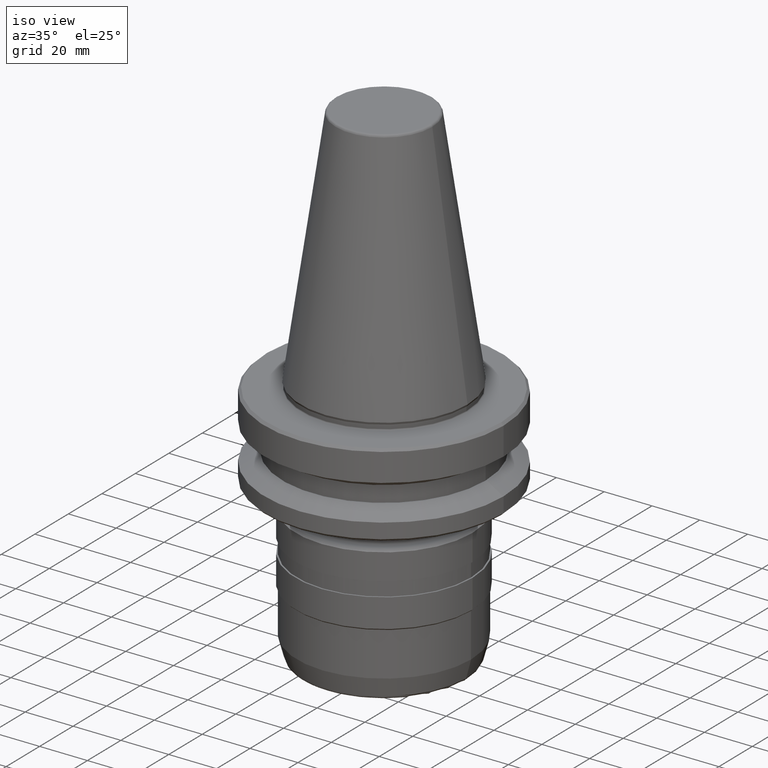
[diagram: clean part render]
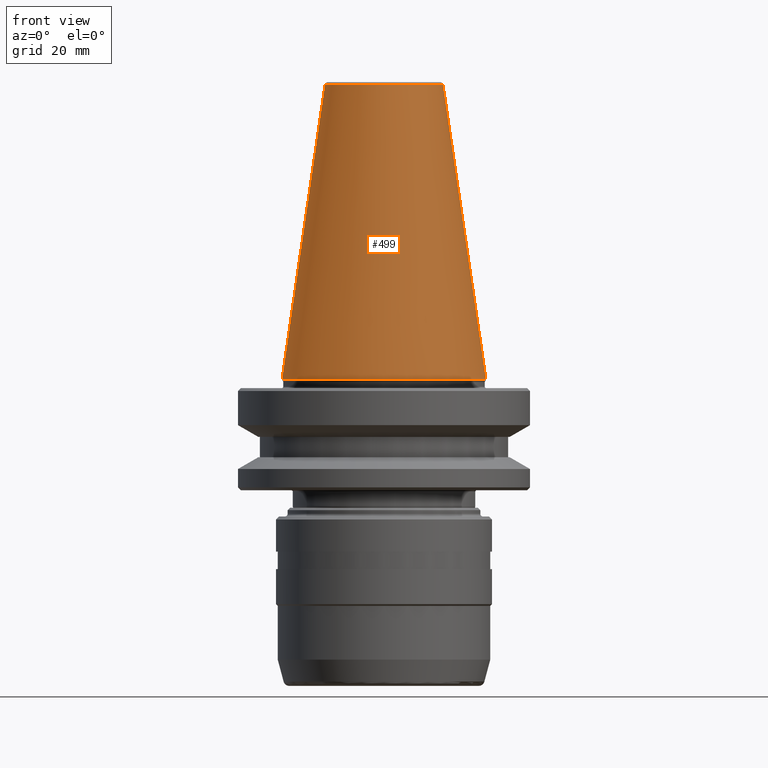
[diagram: tour spotlight — one face highlighted and labeled with its STEP entity id]
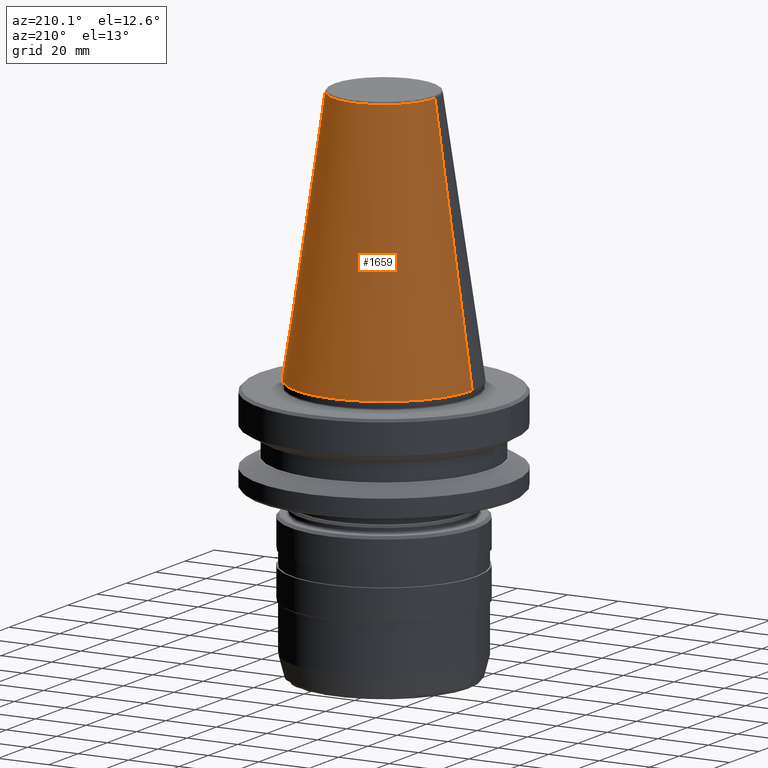
[diagram: tour spotlight — one face highlighted and labeled with its STEP entity id]
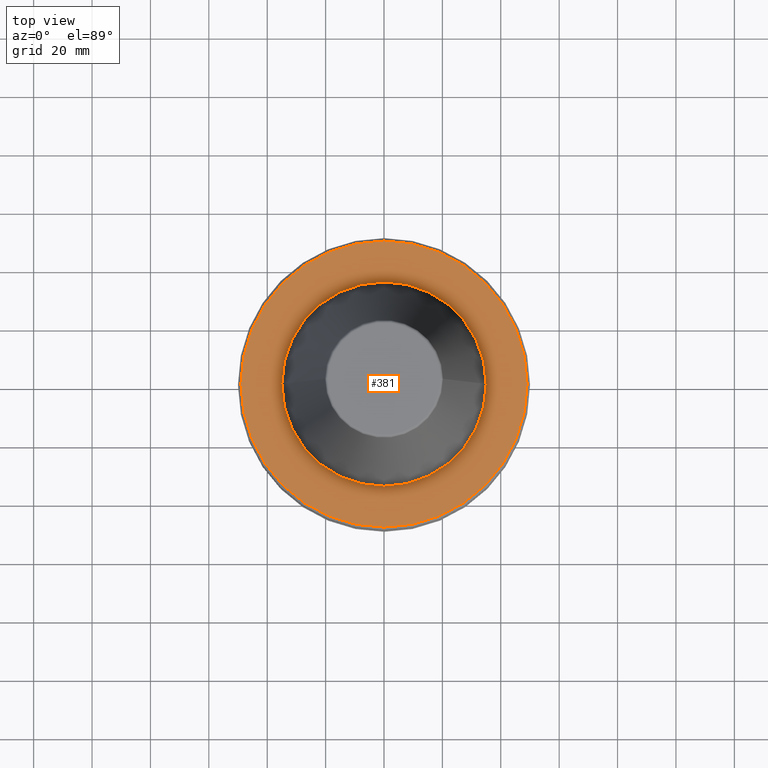
[diagram: tour spotlight — one face highlighted and labeled with its STEP entity id]
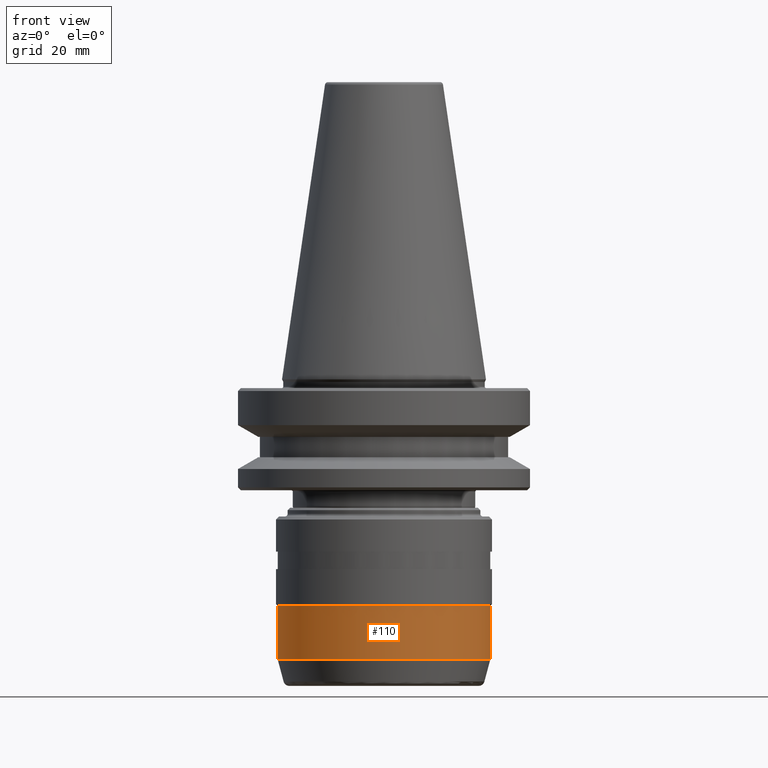
[diagram: tour spotlight — one face highlighted and labeled with its STEP entity id]
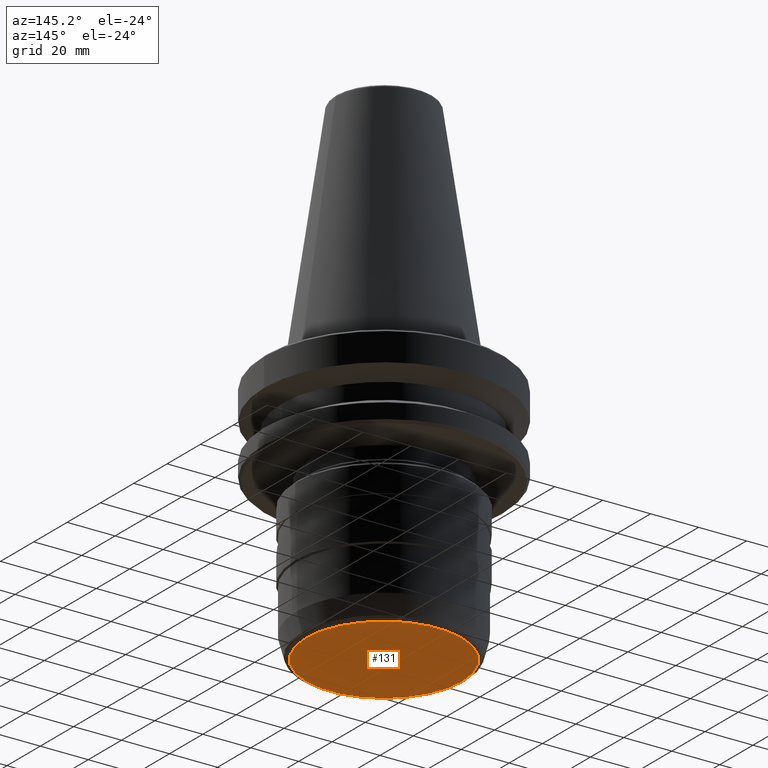
[diagram: tour spotlight — one face highlighted and labeled with its STEP entity id]
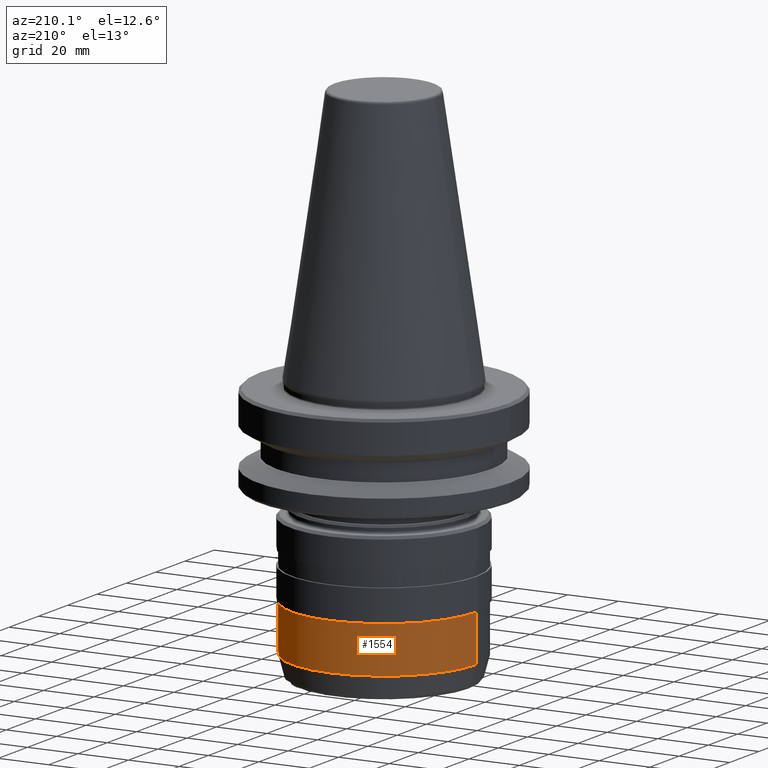
[diagram: tour spotlight — one face highlighted and labeled with its STEP entity id]
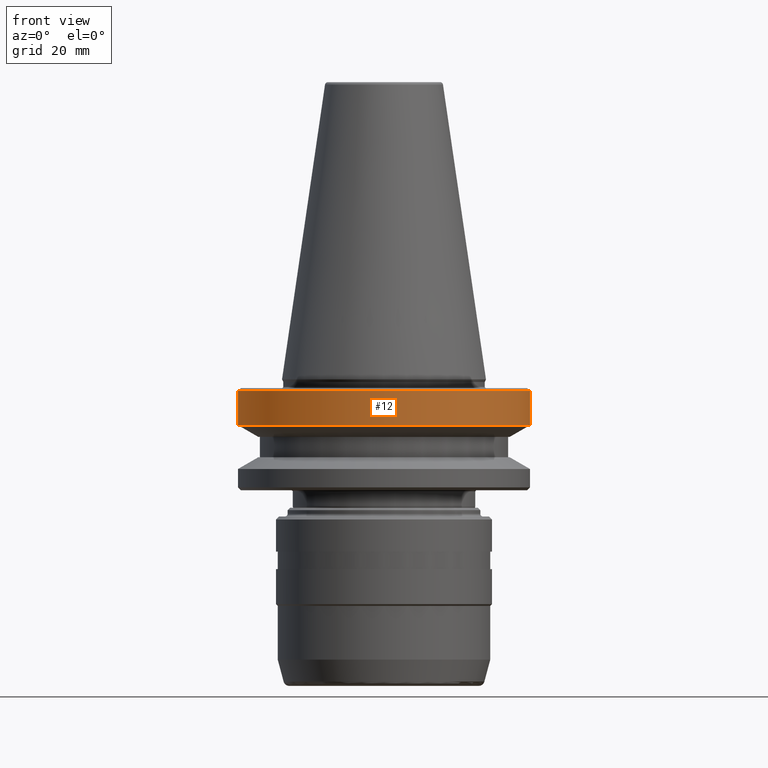
[diagram: tour spotlight — one face highlighted and labeled with its STEP entity id]
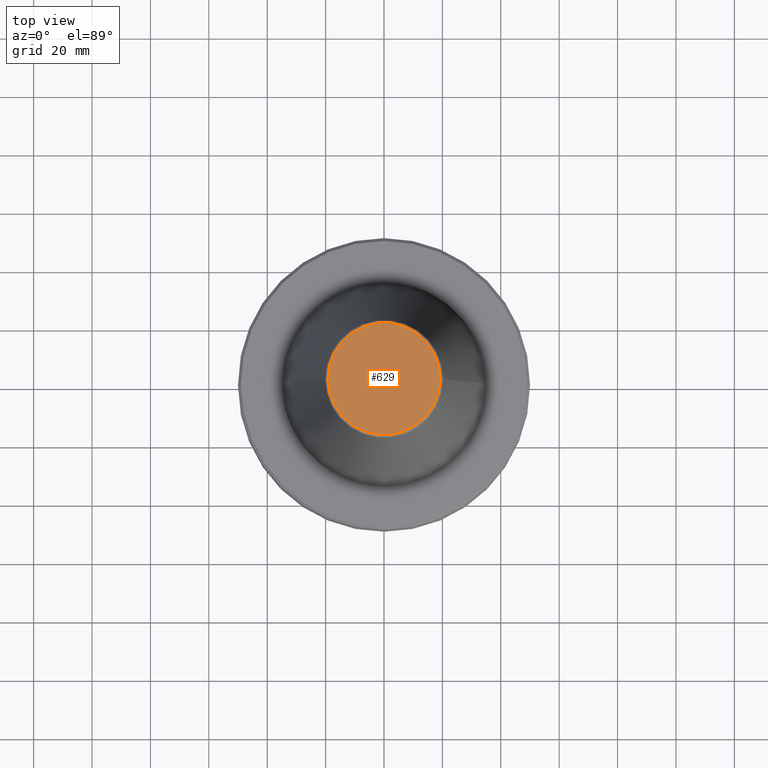
[diagram: tour spotlight — one face highlighted and labeled with its STEP entity id]
A machine part: a face-by-face anatomy tour. The part has 62 B-rep faces; the first image is the clean iso view, then the 8 largest visible faces are spotlighted one at a time (largest first), each with its STEP entity span.

Face 1 — front view, entity #499. In plain terms, the highlighted conical surface has half-angle 8.297 deg.
Definition (entity closure, byte-faithful):
#91 = EDGE_CURVE ( 'NONE', #735, #420, #225, .T. ) ;
#102 = DIRECTION ( 'NONE',  ( 1.000000000000000000, 0.0000000000000000000, 0.0000000000000000000 ) ) ;
#138 = AXIS2_PLACEMENT_3D ( 'NONE', #1154, #1097, #923 ) ;
#156 = EDGE_CURVE ( 'NONE', #364, #420, #1190, .T. ) ;
#222 = DIRECTION ( 'NONE',  ( -0.1443082234293903100, 0.0000000000000000000, -0.9895327870518759700 ) ) ;
#225 = CIRCLE ( 'NONE', #138, 34.92499999999986900 ) ;
#253 = CARTESIAN_POINT ( 'NONE',  ( -20.20381645192199100, 0.0000000000000000000, 100.9443082234282800 ) ) ;
#364 = VERTEX_POINT ( 'NONE', #639 ) ;
#379 = ORIENTED_EDGE ( 'NONE', *, *, #91, .T. ) ;
#416 = DIRECTION ( 'NONE',  ( -1.000000000000000000, 0.0000000000000000000, 0.0000000000000000000 ) ) ;
#419 = CONICAL_SURFACE ( 'NONE', #636, 34.92499999999986900, 0.1448138426689051000 ) ;
#420 = VERTEX_POINT ( 'NONE', #746 ) ;
#450 = DIRECTION ( 'NONE',  ( 0.0000000000000000000, 0.0000000000000000000, -1.000000000000000000 ) ) ;
#484 = AXIS2_PLACEMENT_3D ( 'NONE', #1654, #890, #102 ) ;
#499 = ADVANCED_FACE ( 'NONE', ( #1083 ), #419, .T. ) ;
#542 = VECTOR ( 'NONE', #222, 999.9999999999998900 ) ;
#636 = AXIS2_PLACEMENT_3D ( 'NONE', #701, #450, #416 ) ;
#639 = CARTESIAN_POINT ( 'NONE',  ( 20.20381645192199100, 3.375666430431402900E-015, 100.9443082234282800 ) ) ;
#651 = CARTESIAN_POINT ( 'NONE',  ( 34.92499999999986900, 4.277078946022115100E-015, 0.0000000000000000000 ) ) ;
#660 = ORIENTED_EDGE ( 'NONE', *, *, #1479, .T. ) ;
#691 = EDGE_LOOP ( 'NONE', ( #1460, #1430, #660, #379 ) ) ;
#701 = CARTESIAN_POINT ( 'NONE',  ( 0.0000000000000000000, 0.0000000000000000000, 0.0000000000000000000 ) ) ;
#735 = VERTEX_POINT ( 'NONE', #1503 ) ;
#746 = CARTESIAN_POINT ( 'NONE',  ( 34.92499999999986900, 0.0000000000000000000, 0.0000000000000000000 ) ) ;
#890 = DIRECTION ( 'NONE',  ( -0.0000000000000000000, -0.0000000000000000000, 1.000000000000000000 ) ) ;
#909 = EDGE_CURVE ( 'NONE', #947, #364, #1635, .T. ) ;
#923 = DIRECTION ( 'NONE',  ( 1.000000000000000000, 0.0000000000000000000, 0.0000000000000000000 ) ) ;
#947 = VERTEX_POINT ( 'NONE', #253 ) ;
#1049 = VECTOR ( 'NONE', #1523, 999.9999999999998900 ) ;
#1083 = FACE_OUTER_BOUND ( 'NONE', #691, .T. ) ;
#1097 = DIRECTION ( 'NONE',  ( -0.0000000000000000000, -0.0000000000000000000, 1.000000000000000000 ) ) ;
#1139 = CARTESIAN_POINT ( 'NONE',  ( -34.92499999999986900, 0.0000000000000000000, 0.0000000000000000000 ) ) ;
#1154 = CARTESIAN_POINT ( 'NONE',  ( 0.0000000000000000000, 0.0000000000000000000, 0.0000000000000000000 ) ) ;
#1190 = LINE ( 'NONE', #651, #1049 ) ;
#1199 = LINE ( 'NONE', #1139, #542 ) ;
#1430 = ORIENTED_EDGE ( 'NONE', *, *, #909, .F. ) ;
#1460 = ORIENTED_EDGE ( 'NONE', *, *, #156, .F. ) ;
#1479 = EDGE_CURVE ( 'NONE', #947, #735, #1199, .T. ) ;
#1503 = CARTESIAN_POINT ( 'NONE',  ( -34.92499999999986900, 4.277078946022115900E-015, 0.0000000000000000000 ) ) ;
#1523 = DIRECTION ( 'NONE',  ( 0.1443082234293903100, 1.767266039134439300E-017, -0.9895327870518759700 ) ) ;
#1635 = CIRCLE ( 'NONE', #484, 20.20381645192199100 ) ;
#1654 = CARTESIAN_POINT ( 'NONE',  ( 0.0000000000000000000, 0.0000000000000000000, 100.9443082234282800 ) ) ;

Face 2 — auxiliary view, entity #1659. In plain terms, the highlighted conical surface has half-angle 8.297 deg.
Definition (entity closure, byte-faithful):
#6 = DIRECTION ( 'NONE',  ( 0.0000000000000000000, 0.0000000000000000000, -1.000000000000000000 ) ) ;
#24 = CIRCLE ( 'NONE', #84, 20.20381645192199100 ) ;
#84 = AXIS2_PLACEMENT_3D ( 'NONE', #146, #1072, #292 ) ;
#146 = CARTESIAN_POINT ( 'NONE',  ( 0.0000000000000000000, 0.0000000000000000000, 100.9443082234282800 ) ) ;
#156 = EDGE_CURVE ( 'NONE', #364, #420, #1190, .T. ) ;
#222 = DIRECTION ( 'NONE',  ( -0.1443082234293903100, 0.0000000000000000000, -0.9895327870518759700 ) ) ;
#243 = EDGE_CURVE ( 'NONE', #420, #735, #1286, .T. ) ;
#253 = CARTESIAN_POINT ( 'NONE',  ( -20.20381645192199100, 0.0000000000000000000, 100.9443082234282800 ) ) ;
#264 = CONICAL_SURFACE ( 'NONE', #1128, 34.92499999999986900, 0.1448138426689051000 ) ;
#292 = DIRECTION ( 'NONE',  ( 1.000000000000000000, 0.0000000000000000000, 0.0000000000000000000 ) ) ;
#307 = FACE_OUTER_BOUND ( 'NONE', #661, .T. ) ;
#308 = AXIS2_PLACEMENT_3D ( 'NONE', #1105, #1338, #1458 ) ;
#315 = ORIENTED_EDGE ( 'NONE', *, *, #243, .T. ) ;
#360 = ORIENTED_EDGE ( 'NONE', *, *, #1096, .F. ) ;
#364 = VERTEX_POINT ( 'NONE', #639 ) ;
#420 = VERTEX_POINT ( 'NONE', #746 ) ;
#479 = ORIENTED_EDGE ( 'NONE', *, *, #156, .T. ) ;
#515 = DIRECTION ( 'NONE',  ( -1.000000000000000000, 0.0000000000000000000, 0.0000000000000000000 ) ) ;
#542 = VECTOR ( 'NONE', #222, 999.9999999999998900 ) ;
#639 = CARTESIAN_POINT ( 'NONE',  ( 20.20381645192199100, 3.375666430431402900E-015, 100.9443082234282800 ) ) ;
#651 = CARTESIAN_POINT ( 'NONE',  ( 34.92499999999986900, 4.277078946022115100E-015, 0.0000000000000000000 ) ) ;
#661 = EDGE_LOOP ( 'NONE', ( #360, #479, #315, #1142 ) ) ;
#735 = VERTEX_POINT ( 'NONE', #1503 ) ;
#746 = CARTESIAN_POINT ( 'NONE',  ( 34.92499999999986900, 0.0000000000000000000, 0.0000000000000000000 ) ) ;
#947 = VERTEX_POINT ( 'NONE', #253 ) ;
#1049 = VECTOR ( 'NONE', #1523, 999.9999999999998900 ) ;
#1072 = DIRECTION ( 'NONE',  ( -0.0000000000000000000, -0.0000000000000000000, 1.000000000000000000 ) ) ;
#1096 = EDGE_CURVE ( 'NONE', #364, #947, #24, .T. ) ;
#1105 = CARTESIAN_POINT ( 'NONE',  ( 0.0000000000000000000, 0.0000000000000000000, 0.0000000000000000000 ) ) ;
#1128 = AXIS2_PLACEMENT_3D ( 'NONE', #1301, #6, #515 ) ;
#1139 = CARTESIAN_POINT ( 'NONE',  ( -34.92499999999986900, 0.0000000000000000000, 0.0000000000000000000 ) ) ;
#1142 = ORIENTED_EDGE ( 'NONE', *, *, #1479, .F. ) ;
#1190 = LINE ( 'NONE', #651, #1049 ) ;
#1199 = LINE ( 'NONE', #1139, #542 ) ;
#1286 = CIRCLE ( 'NONE', #308, 34.92499999999986900 ) ;
#1301 = CARTESIAN_POINT ( 'NONE',  ( 0.0000000000000000000, 0.0000000000000000000, 0.0000000000000000000 ) ) ;
#1338 = DIRECTION ( 'NONE',  ( -0.0000000000000000000, -0.0000000000000000000, 1.000000000000000000 ) ) ;
#1458 = DIRECTION ( 'NONE',  ( 1.000000000000000000, 0.0000000000000000000, 0.0000000000000000000 ) ) ;
#1479 = EDGE_CURVE ( 'NONE', #947, #735, #1199, .T. ) ;
#1503 = CARTESIAN_POINT ( 'NONE',  ( -34.92499999999986900, 4.277078946022115900E-015, 0.0000000000000000000 ) ) ;
#1523 = DIRECTION ( 'NONE',  ( 0.1443082234293903100, 1.767266039134439300E-017, -0.9895327870518759700 ) ) ;
#1659 = ADVANCED_FACE ( 'NONE', ( #307 ), #264, .T. ) ;

Face 3 — top view, entity #381. In plain terms, the highlighted planar face has unit normal (0, 0, -1).
Definition (entity closure, byte-faithful):
#76 = DIRECTION ( 'NONE',  ( -0.0000000000000000000, -0.0000000000000000000, 1.000000000000000000 ) ) ;
#155 = CARTESIAN_POINT ( 'NONE',  ( 0.0000000000000000000, 0.0000000000000000000, -3.000000000001612500 ) ) ;
#181 = EDGE_CURVE ( 'NONE', #925, #1349, #903, .T. ) ;
#208 = EDGE_CURVE ( 'NONE', #1349, #925, #392, .T. ) ;
#242 = CARTESIAN_POINT ( 'NONE',  ( 0.0000000000000000000, 49.00000000000037700, -3.000000000001529400 ) ) ;
#297 = VERTEX_POINT ( 'NONE', #1202 ) ;
#327 = CIRCLE ( 'NONE', #1451, 49.00000000000037700 ) ;
#381 = ADVANCED_FACE ( 'NONE', ( #692, #1246 ), #784, .F. ) ;
#389 = DIRECTION ( 'NONE',  ( 1.000000000000000000, 0.0000000000000000000, 0.0000000000000000000 ) ) ;
#392 = CIRCLE ( 'NONE', #1276, 35.00000000000014200 ) ;
#516 = EDGE_LOOP ( 'NONE', ( #881, #1463 ) ) ;
#583 = DIRECTION ( 'NONE',  ( 1.000000000000000000, 0.0000000000000000000, 0.0000000000000000000 ) ) ;
#646 = EDGE_CURVE ( 'NONE', #297, #795, #832, .T. ) ;
#692 = FACE_BOUND ( 'NONE', #1406, .T. ) ;
#729 = DIRECTION ( 'NONE',  ( -1.000000000000000000, 0.0000000000000000000, -0.0000000000000000000 ) ) ;
#768 = CARTESIAN_POINT ( 'NONE',  ( -35.00000000000014200, 4.286263797015753900E-015, -3.000000000001612500 ) ) ;
#776 = DIRECTION ( 'NONE',  ( 0.0000000000000000000, 0.0000000000000000000, -1.000000000000000000 ) ) ;
#784 = PLANE ( 'NONE',  #1539 ) ;
#790 = DIRECTION ( 'NONE',  ( -0.0000000000000000000, -0.0000000000000000000, 1.000000000000000000 ) ) ;
#795 = VERTEX_POINT ( 'NONE', #1238 ) ;
#817 = CARTESIAN_POINT ( 'NONE',  ( 0.0000000000000000000, 0.0000000000000000000, -3.000000000001612500 ) ) ;
#832 = CIRCLE ( 'NONE', #1397, 49.00000000000037700 ) ;
#867 = CARTESIAN_POINT ( 'NONE',  ( 0.0000000000000000000, 0.0000000000000000000, -3.000000000001446000 ) ) ;
#881 = ORIENTED_EDGE ( 'NONE', *, *, #1395, .T. ) ;
#903 = CIRCLE ( 'NONE', #1112, 35.00000000000014200 ) ;
#925 = VERTEX_POINT ( 'NONE', #768 ) ;
#988 = DIRECTION ( 'NONE',  ( 1.000000000000000000, 0.0000000000000000000, 0.0000000000000000000 ) ) ;
#997 = DIRECTION ( 'NONE',  ( 1.000000000000000000, 0.0000000000000000000, 0.0000000000000000000 ) ) ;
#1112 = AXIS2_PLACEMENT_3D ( 'NONE', #817, #1263, #389 ) ;
#1113 = DIRECTION ( 'NONE',  ( -0.0000000000000000000, -0.0000000000000000000, 1.000000000000000000 ) ) ;
#1150 = ORIENTED_EDGE ( 'NONE', *, *, #181, .F. ) ;
#1202 = CARTESIAN_POINT ( 'NONE',  ( 49.00000000000037700, 6.062001655779445100E-015, -3.000000000001446000 ) ) ;
#1235 = CARTESIAN_POINT ( 'NONE',  ( 35.00000000000014200, 0.0000000000000000000, -3.000000000001612500 ) ) ;
#1238 = CARTESIAN_POINT ( 'NONE',  ( -49.00000000000037700, 0.0000000000000000000, -3.000000000001446000 ) ) ;
#1246 = FACE_OUTER_BOUND ( 'NONE', #516, .T. ) ;
#1263 = DIRECTION ( 'NONE',  ( -0.0000000000000000000, -0.0000000000000000000, 1.000000000000000000 ) ) ;
#1276 = AXIS2_PLACEMENT_3D ( 'NONE', #155, #790, #583 ) ;
#1297 = CARTESIAN_POINT ( 'NONE',  ( 0.0000000000000000000, 0.0000000000000000000, -3.000000000001446000 ) ) ;
#1349 = VERTEX_POINT ( 'NONE', #1235 ) ;
#1395 = EDGE_CURVE ( 'NONE', #795, #297, #327, .T. ) ;
#1397 = AXIS2_PLACEMENT_3D ( 'NONE', #1297, #1113, #988 ) ;
#1406 = EDGE_LOOP ( 'NONE', ( #1410, #1150 ) ) ;
#1410 = ORIENTED_EDGE ( 'NONE', *, *, #208, .F. ) ;
#1451 = AXIS2_PLACEMENT_3D ( 'NONE', #867, #76, #997 ) ;
#1463 = ORIENTED_EDGE ( 'NONE', *, *, #646, .T. ) ;
#1539 = AXIS2_PLACEMENT_3D ( 'NONE', #242, #776, #729 ) ;

Face 4 — front view, entity #110. In plain terms, the highlighted cylindrical surface (partial cylindrical patch) has radius 36.4 mm, axis along (-0, -0, 1).
Definition (entity closure, byte-faithful):
#5 = VERTEX_POINT ( 'NONE', #871 ) ;
#23 = DIRECTION ( 'NONE',  ( -0.0000000000000000000, -0.0000000000000000000, 1.000000000000000000 ) ) ;
#65 = AXIS2_PLACEMENT_3D ( 'NONE', #1076, #299, #1203 ) ;
#77 = ORIENTED_EDGE ( 'NONE', *, *, #1156, .F. ) ;
#110 = ADVANCED_FACE ( 'NONE', ( #316 ), #1585, .T. ) ;
#185 = VERTEX_POINT ( 'NONE', #1358 ) ;
#262 = DIRECTION ( 'NONE',  ( -0.0000000000000000000, -0.0000000000000000000, 1.000000000000000000 ) ) ;
#299 = DIRECTION ( 'NONE',  ( -0.0000000000000000000, -0.0000000000000000000, 1.000000000000000000 ) ) ;
#302 = VECTOR ( 'NONE', #1581, 1000.000000000000000 ) ;
#316 = FACE_OUTER_BOUND ( 'NONE', #936, .T. ) ;
#350 = DIRECTION ( 'NONE',  ( -0.0000000000000000000, -0.0000000000000000000, 1.000000000000000000 ) ) ;
#434 = AXIS2_PLACEMENT_3D ( 'NONE', #1036, #262, #1165 ) ;
#437 = CARTESIAN_POINT ( 'NONE',  ( 36.39999999999887600, 0.0000000000000000000, -96.00000000000643800 ) ) ;
#454 = ORIENTED_EDGE ( 'NONE', *, *, #961, .T. ) ;
#582 = AXIS2_PLACEMENT_3D ( 'NONE', #1348, #350, #1477 ) ;
#619 = EDGE_CURVE ( 'NONE', #1257, #732, #1378, .T. ) ;
#633 = LINE ( 'NONE', #681, #302 ) ;
#650 = ORIENTED_EDGE ( 'NONE', *, *, #1117, .F. ) ;
#681 = CARTESIAN_POINT ( 'NONE',  ( -36.39999999999887600, 4.457714348896228600E-015, 138.0897234962918700 ) ) ;
#717 = CIRCLE ( 'NONE', #65, 36.39999999999887600 ) ;
#732 = VERTEX_POINT ( 'NONE', #1652 ) ;
#871 = CARTESIAN_POINT ( 'NONE',  ( -36.39999999999887600, 4.457714348896228600E-015, -77.60000000000322000 ) ) ;
#936 = EDGE_LOOP ( 'NONE', ( #77, #454, #1337, #650 ) ) ;
#961 = EDGE_CURVE ( 'NONE', #185, #1257, #1564, .T. ) ;
#1035 = VECTOR ( 'NONE', #23, 1000.000000000000000 ) ;
#1036 = CARTESIAN_POINT ( 'NONE',  ( 0.0000000000000000000, 0.0000000000000000000, -96.00000000000643800 ) ) ;
#1076 = CARTESIAN_POINT ( 'NONE',  ( 0.0000000000000000000, 0.0000000000000000000, -77.60000000000322000 ) ) ;
#1117 = EDGE_CURVE ( 'NONE', #5, #732, #717, .T. ) ;
#1156 = EDGE_CURVE ( 'NONE', #185, #5, #633, .T. ) ;
#1165 = DIRECTION ( 'NONE',  ( 1.000000000000000000, 0.0000000000000000000, 0.0000000000000000000 ) ) ;
#1203 = DIRECTION ( 'NONE',  ( 1.000000000000000000, 0.0000000000000000000, 0.0000000000000000000 ) ) ;
#1257 = VERTEX_POINT ( 'NONE', #437 ) ;
#1337 = ORIENTED_EDGE ( 'NONE', *, *, #619, .T. ) ;
#1348 = CARTESIAN_POINT ( 'NONE',  ( 0.0000000000000000000, 0.0000000000000000000, 138.0897234962918700 ) ) ;
#1358 = CARTESIAN_POINT ( 'NONE',  ( -36.39999999999887600, 4.457714348896228600E-015, -96.00000000000643800 ) ) ;
#1378 = LINE ( 'NONE', #1579, #1035 ) ;
#1477 = DIRECTION ( 'NONE',  ( 1.000000000000000000, 0.0000000000000000000, 0.0000000000000000000 ) ) ;
#1564 = CIRCLE ( 'NONE', #434, 36.39999999999887600 ) ;
#1579 = CARTESIAN_POINT ( 'NONE',  ( 36.39999999999887600, 0.0000000000000000000, 138.0897234962918700 ) ) ;
#1581 = DIRECTION ( 'NONE',  ( -0.0000000000000000000, -0.0000000000000000000, 1.000000000000000000 ) ) ;
#1585 = CYLINDRICAL_SURFACE ( 'NONE', #582, 36.39999999999887600 ) ;
#1652 = CARTESIAN_POINT ( 'NONE',  ( 36.39999999999887600, 0.0000000000000000000, -77.60000000000322000 ) ) ;

Face 5 — auxiliary view, entity #131. In plain terms, the highlighted planar face has unit normal (0, -0, 1).
Definition (entity closure, byte-faithful):
#82 = DIRECTION ( 'NONE',  ( 1.000000000000000000, 0.0000000000000000000, 0.0000000000000000000 ) ) ;
#96 = CARTESIAN_POINT ( 'NONE',  ( -32.45380329216218500, 4.092736429328299300E-015, -105.0000000000013100 ) ) ;
#117 = DIRECTION ( 'NONE',  ( 1.000000000000000000, 0.0000000000000000000, 0.0000000000000000000 ) ) ;
#131 = ADVANCED_FACE ( 'NONE', ( #1482 ), #1307, .F. ) ;
#201 = VERTEX_POINT ( 'NONE', #96 ) ;
#233 = DIRECTION ( 'NONE',  ( 1.000000000000000000, 0.0000000000000000000, 0.0000000000000000000 ) ) ;
#309 = CARTESIAN_POINT ( 'NONE',  ( 0.0000000000000000000, 0.0000000000000000000, -105.0000000000013100 ) ) ;
#352 = VERTEX_POINT ( 'NONE', #866 ) ;
#455 = EDGE_CURVE ( 'NONE', #352, #201, #1413, .T. ) ;
#601 = AXIS2_PLACEMENT_3D ( 'NONE', #1668, #910, #117 ) ;
#696 = ORIENTED_EDGE ( 'NONE', *, *, #1558, .F. ) ;
#756 = AXIS2_PLACEMENT_3D ( 'NONE', #1618, #1319, #82 ) ;
#774 = EDGE_LOOP ( 'NONE', ( #962, #696 ) ) ;
#866 = CARTESIAN_POINT ( 'NONE',  ( 32.45380329216218500, 0.0000000000000000000, -105.0000000000013100 ) ) ;
#910 = DIRECTION ( 'NONE',  ( -0.0000000000000000000, -0.0000000000000000000, 1.000000000000000000 ) ) ;
#962 = ORIENTED_EDGE ( 'NONE', *, *, #455, .F. ) ;
#983 = DIRECTION ( 'NONE',  ( -0.0000000000000000000, -0.0000000000000000000, 1.000000000000000000 ) ) ;
#1032 = CIRCLE ( 'NONE', #601, 32.45380329216218500 ) ;
#1307 = PLANE ( 'NONE',  #756 ) ;
#1319 = DIRECTION ( 'NONE',  ( 0.0000000000000000000, -0.0000000000000000000, 1.000000000000000000 ) ) ;
#1362 = AXIS2_PLACEMENT_3D ( 'NONE', #309, #983, #233 ) ;
#1413 = CIRCLE ( 'NONE', #1362, 32.45380329216218500 ) ;
#1482 = FACE_OUTER_BOUND ( 'NONE', #774, .T. ) ;
#1558 = EDGE_CURVE ( 'NONE', #201, #352, #1032, .T. ) ;
#1618 = CARTESIAN_POINT ( 'NONE',  ( 0.0000000000000000000, 22.15000000000044600, -105.0000000000013100 ) ) ;
#1668 = CARTESIAN_POINT ( 'NONE',  ( 0.0000000000000000000, 0.0000000000000000000, -105.0000000000013100 ) ) ;

Face 6 — auxiliary view, entity #1554. In plain terms, the highlighted cylindrical surface (partial cylindrical patch) has radius 36.4 mm, axis along (-0, -0, 1).
Definition (entity closure, byte-faithful):
#5 = VERTEX_POINT ( 'NONE', #871 ) ;
#23 = DIRECTION ( 'NONE',  ( -0.0000000000000000000, -0.0000000000000000000, 1.000000000000000000 ) ) ;
#48 = DIRECTION ( 'NONE',  ( -0.0000000000000000000, -0.0000000000000000000, 1.000000000000000000 ) ) ;
#107 = DIRECTION ( 'NONE',  ( 1.000000000000000000, 0.0000000000000000000, 0.0000000000000000000 ) ) ;
#185 = VERTEX_POINT ( 'NONE', #1358 ) ;
#200 = CARTESIAN_POINT ( 'NONE',  ( 0.0000000000000000000, 0.0000000000000000000, -96.00000000000643800 ) ) ;
#302 = VECTOR ( 'NONE', #1581, 1000.000000000000000 ) ;
#341 = DIRECTION ( 'NONE',  ( 1.000000000000000000, 0.0000000000000000000, 0.0000000000000000000 ) ) ;
#437 = CARTESIAN_POINT ( 'NONE',  ( 36.39999999999887600, 0.0000000000000000000, -96.00000000000643800 ) ) ;
#491 = EDGE_CURVE ( 'NONE', #732, #5, #1376, .T. ) ;
#526 = ORIENTED_EDGE ( 'NONE', *, *, #1330, .T. ) ;
#604 = AXIS2_PLACEMENT_3D ( 'NONE', #772, #900, #107 ) ;
#619 = EDGE_CURVE ( 'NONE', #1257, #732, #1378, .T. ) ;
#633 = LINE ( 'NONE', #681, #302 ) ;
#677 = AXIS2_PLACEMENT_3D ( 'NONE', #1472, #48, #1424 ) ;
#681 = CARTESIAN_POINT ( 'NONE',  ( -36.39999999999887600, 4.457714348896228600E-015, 138.0897234962918700 ) ) ;
#682 = CYLINDRICAL_SURFACE ( 'NONE', #604, 36.39999999999887600 ) ;
#732 = VERTEX_POINT ( 'NONE', #1652 ) ;
#748 = CIRCLE ( 'NONE', #1490, 36.39999999999887600 ) ;
#772 = CARTESIAN_POINT ( 'NONE',  ( 0.0000000000000000000, 0.0000000000000000000, 138.0897234962918700 ) ) ;
#833 = ORIENTED_EDGE ( 'NONE', *, *, #491, .F. ) ;
#871 = CARTESIAN_POINT ( 'NONE',  ( -36.39999999999887600, 4.457714348896228600E-015, -77.60000000000322000 ) ) ;
#900 = DIRECTION ( 'NONE',  ( -0.0000000000000000000, -0.0000000000000000000, 1.000000000000000000 ) ) ;
#1035 = VECTOR ( 'NONE', #23, 1000.000000000000000 ) ;
#1116 = DIRECTION ( 'NONE',  ( -0.0000000000000000000, -0.0000000000000000000, 1.000000000000000000 ) ) ;
#1133 = ORIENTED_EDGE ( 'NONE', *, *, #1156, .T. ) ;
#1156 = EDGE_CURVE ( 'NONE', #185, #5, #633, .T. ) ;
#1257 = VERTEX_POINT ( 'NONE', #437 ) ;
#1330 = EDGE_CURVE ( 'NONE', #1257, #185, #748, .T. ) ;
#1358 = CARTESIAN_POINT ( 'NONE',  ( -36.39999999999887600, 4.457714348896228600E-015, -96.00000000000643800 ) ) ;
#1372 = ORIENTED_EDGE ( 'NONE', *, *, #619, .F. ) ;
#1374 = FACE_OUTER_BOUND ( 'NONE', #1461, .T. ) ;
#1376 = CIRCLE ( 'NONE', #677, 36.39999999999887600 ) ;
#1378 = LINE ( 'NONE', #1579, #1035 ) ;
#1424 = DIRECTION ( 'NONE',  ( 1.000000000000000000, 0.0000000000000000000, 0.0000000000000000000 ) ) ;
#1461 = EDGE_LOOP ( 'NONE', ( #526, #1133, #833, #1372 ) ) ;
#1472 = CARTESIAN_POINT ( 'NONE',  ( 0.0000000000000000000, 0.0000000000000000000, -77.60000000000322000 ) ) ;
#1490 = AXIS2_PLACEMENT_3D ( 'NONE', #200, #1116, #341 ) ;
#1554 = ADVANCED_FACE ( 'NONE', ( #1374 ), #682, .T. ) ;
#1579 = CARTESIAN_POINT ( 'NONE',  ( 36.39999999999887600, 0.0000000000000000000, 138.0897234962918700 ) ) ;
#1581 = DIRECTION ( 'NONE',  ( -0.0000000000000000000, -0.0000000000000000000, 1.000000000000000000 ) ) ;
#1652 = CARTESIAN_POINT ( 'NONE',  ( 36.39999999999887600, 0.0000000000000000000, -77.60000000000322000 ) ) ;

Face 7 — front view, entity #12. In plain terms, the highlighted cylindrical surface (partial cylindrical patch) has radius 50 mm, axis along (-0, -0, 1).
Definition (entity closure, byte-faithful):
#12 = ADVANCED_FACE ( 'NONE', ( #736 ), #611, .T. ) ;
#18 = CARTESIAN_POINT ( 'NONE',  ( 50.00000000000037700, 0.0000000000000000000, -4.000000000001335800 ) ) ;
#28 = AXIS2_PLACEMENT_3D ( 'NONE', #1377, #598, #1498 ) ;
#47 = VERTEX_POINT ( 'NONE', #209 ) ;
#66 = DIRECTION ( 'NONE',  ( 1.000000000000000000, 0.0000000000000000000, 0.0000000000000000000 ) ) ;
#93 = DIRECTION ( 'NONE',  ( -0.0000000000000000000, -0.0000000000000000000, 1.000000000000000000 ) ) ;
#99 = CARTESIAN_POINT ( 'NONE',  ( 0.0000000000000000000, 0.0000000000000000000, -15.70022000322789100 ) ) ;
#100 = DIRECTION ( 'NONE',  ( -0.0000000000000000000, -0.0000000000000000000, 1.000000000000000000 ) ) ;
#160 = EDGE_LOOP ( 'NONE', ( #1058, #398, #227, #373 ) ) ;
#169 = VERTEX_POINT ( 'NONE', #18 ) ;
#209 = CARTESIAN_POINT ( 'NONE',  ( -50.00000000000037700, 6.123233995736812600E-015, -15.70022000322789100 ) ) ;
#227 = ORIENTED_EDGE ( 'NONE', *, *, #1347, .T. ) ;
#373 = ORIENTED_EDGE ( 'NONE', *, *, #1368, .F. ) ;
#398 = ORIENTED_EDGE ( 'NONE', *, *, #882, .T. ) ;
#418 = VECTOR ( 'NONE', #100, 1000.000000000000000 ) ;
#591 = CARTESIAN_POINT ( 'NONE',  ( 50.00000000000037700, 0.0000000000000000000, 117.2709046859995500 ) ) ;
#598 = DIRECTION ( 'NONE',  ( -0.0000000000000000000, -0.0000000000000000000, 1.000000000000000000 ) ) ;
#611 = CYLINDRICAL_SURFACE ( 'NONE', #1398, 50.00000000000037700 ) ;
#664 = VECTOR ( 'NONE', #992, 1000.000000000000000 ) ;
#687 = DIRECTION ( 'NONE',  ( 1.000000000000000000, 0.0000000000000000000, 0.0000000000000000000 ) ) ;
#698 = CIRCLE ( 'NONE', #816, 50.00000000000037700 ) ;
#736 = FACE_OUTER_BOUND ( 'NONE', #160, .T. ) ;
#765 = LINE ( 'NONE', #887, #418 ) ;
#816 = AXIS2_PLACEMENT_3D ( 'NONE', #99, #93, #66 ) ;
#882 = EDGE_CURVE ( 'NONE', #47, #1237, #698, .T. ) ;
#887 = CARTESIAN_POINT ( 'NONE',  ( -50.00000000000037700, 6.123233995736812600E-015, 117.2709046859995500 ) ) ;
#927 = CARTESIAN_POINT ( 'NONE',  ( 0.0000000000000000000, 0.0000000000000000000, 117.2709046859995500 ) ) ;
#963 = CARTESIAN_POINT ( 'NONE',  ( 50.00000000000037700, 0.0000000000000000000, -15.70022000322789100 ) ) ;
#984 = CARTESIAN_POINT ( 'NONE',  ( -50.00000000000037700, 6.123233995736812600E-015, -4.000000000001335800 ) ) ;
#992 = DIRECTION ( 'NONE',  ( -0.0000000000000000000, -0.0000000000000000000, 1.000000000000000000 ) ) ;
#1013 = LINE ( 'NONE', #591, #664 ) ;
#1058 = ORIENTED_EDGE ( 'NONE', *, *, #1527, .F. ) ;
#1103 = CIRCLE ( 'NONE', #28, 50.00000000000037700 ) ;
#1187 = DIRECTION ( 'NONE',  ( -0.0000000000000000000, -0.0000000000000000000, 1.000000000000000000 ) ) ;
#1237 = VERTEX_POINT ( 'NONE', #963 ) ;
#1344 = VERTEX_POINT ( 'NONE', #984 ) ;
#1347 = EDGE_CURVE ( 'NONE', #1237, #169, #1013, .T. ) ;
#1368 = EDGE_CURVE ( 'NONE', #1344, #169, #1103, .T. ) ;
#1377 = CARTESIAN_POINT ( 'NONE',  ( 0.0000000000000000000, 0.0000000000000000000, -4.000000000001335800 ) ) ;
#1398 = AXIS2_PLACEMENT_3D ( 'NONE', #927, #1187, #687 ) ;
#1498 = DIRECTION ( 'NONE',  ( 1.000000000000000000, 0.0000000000000000000, 0.0000000000000000000 ) ) ;
#1527 = EDGE_CURVE ( 'NONE', #47, #1344, #765, .T. ) ;

Face 8 — top view, entity #629. In plain terms, the highlighted planar face has unit normal (0, 0, -1).
Definition (entity closure, byte-faithful):
#75 = CARTESIAN_POINT ( 'NONE',  ( -19.21428366486999200, 2.413662506824960500E-015, 101.7999999999990000 ) ) ;
#90 = ORIENTED_EDGE ( 'NONE', *, *, #563, .T. ) ;
#123 = CARTESIAN_POINT ( 'NONE',  ( 19.21428366486999200, 0.0000000000000000000, 101.7999999999990000 ) ) ;
#163 = EDGE_LOOP ( 'NONE', ( #918, #90 ) ) ;
#255 = CIRCLE ( 'NONE', #644, 19.21428366486999200 ) ;
#319 = DIRECTION ( 'NONE',  ( -0.0000000000000000000, -0.0000000000000000000, 1.000000000000000000 ) ) ;
#351 = PLANE ( 'NONE',  #1416 ) ;
#473 = DIRECTION ( 'NONE',  ( -0.0000000000000000000, -0.0000000000000000000, 1.000000000000000000 ) ) ;
#504 = VERTEX_POINT ( 'NONE', #75 ) ;
#518 = CARTESIAN_POINT ( 'NONE',  ( 0.0000000000000000000, 19.21428366486999200, 101.7999999999990000 ) ) ;
#563 = EDGE_CURVE ( 'NONE', #504, #1600, #1380, .T. ) ;
#629 = ADVANCED_FACE ( 'NONE', ( #998 ), #351, .F. ) ;
#644 = AXIS2_PLACEMENT_3D ( 'NONE', #1101, #319, #1216 ) ;
#918 = ORIENTED_EDGE ( 'NONE', *, *, #1230, .T. ) ;
#973 = DIRECTION ( 'NONE',  ( 0.0000000000000000000, 0.0000000000000000000, -1.000000000000000000 ) ) ;
#998 = FACE_OUTER_BOUND ( 'NONE', #163, .T. ) ;
#1001 = AXIS2_PLACEMENT_3D ( 'NONE', #1121, #473, #1014 ) ;
#1014 = DIRECTION ( 'NONE',  ( 1.000000000000000000, 0.0000000000000000000, 0.0000000000000000000 ) ) ;
#1101 = CARTESIAN_POINT ( 'NONE',  ( 0.0000000000000000000, 0.0000000000000000000, 101.7999999999990000 ) ) ;
#1121 = CARTESIAN_POINT ( 'NONE',  ( 0.0000000000000000000, 0.0000000000000000000, 101.7999999999990000 ) ) ;
#1216 = DIRECTION ( 'NONE',  ( 1.000000000000000000, 0.0000000000000000000, 0.0000000000000000000 ) ) ;
#1230 = EDGE_CURVE ( 'NONE', #1600, #504, #255, .T. ) ;
#1380 = CIRCLE ( 'NONE', #1001, 19.21428366486999200 ) ;
#1416 = AXIS2_PLACEMENT_3D ( 'NONE', #518, #973, #1610 ) ;
#1600 = VERTEX_POINT ( 'NONE', #123 ) ;
#1610 = DIRECTION ( 'NONE',  ( -1.000000000000000000, 0.0000000000000000000, -0.0000000000000000000 ) ) ;